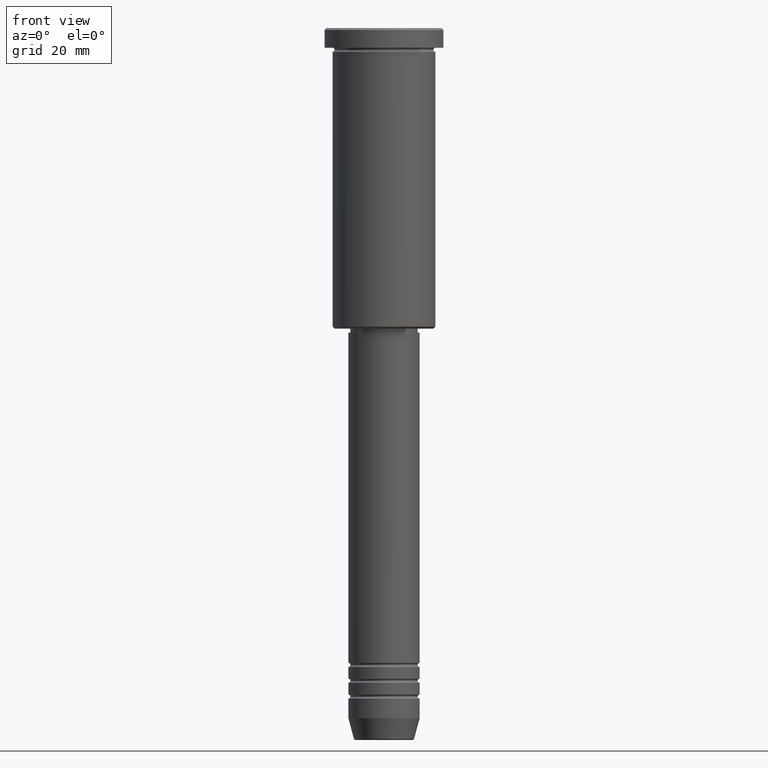
[diagram: clean part render]
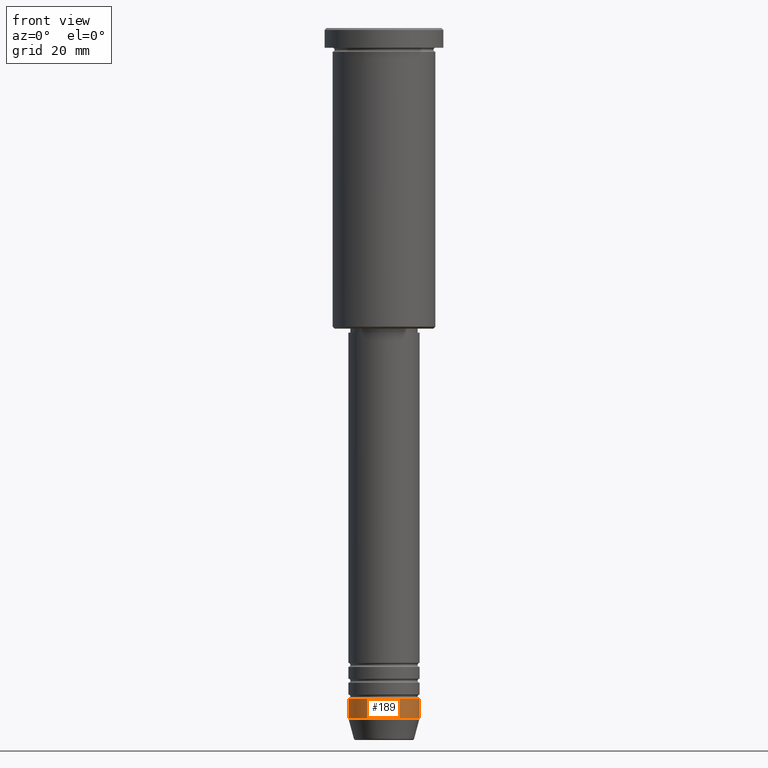
[diagram: same view with one face highlighted and labeled with its STEP entity id]
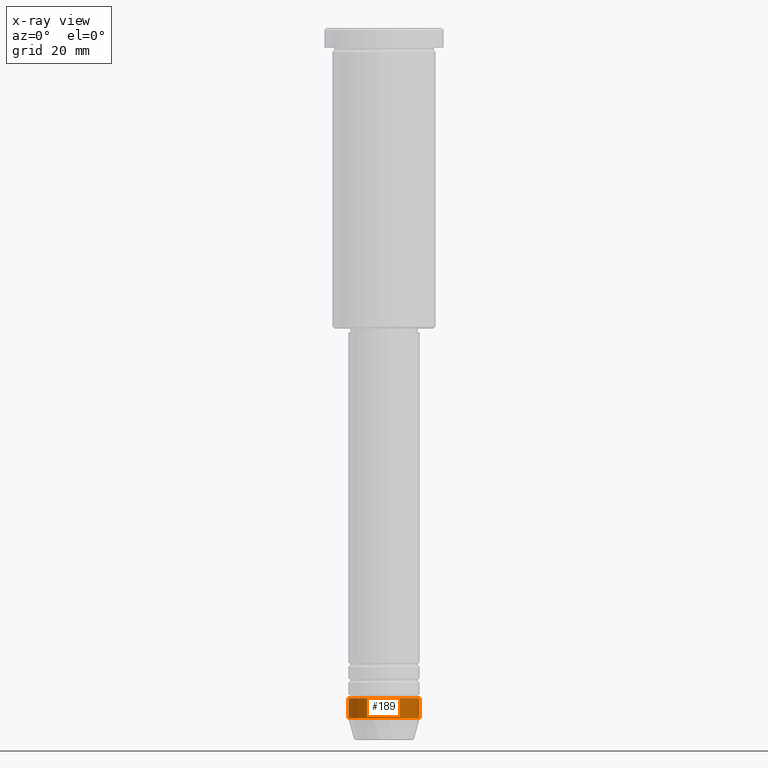
[diagram: x-ray of the same camera — body ghosted, the highlighted face saturated]
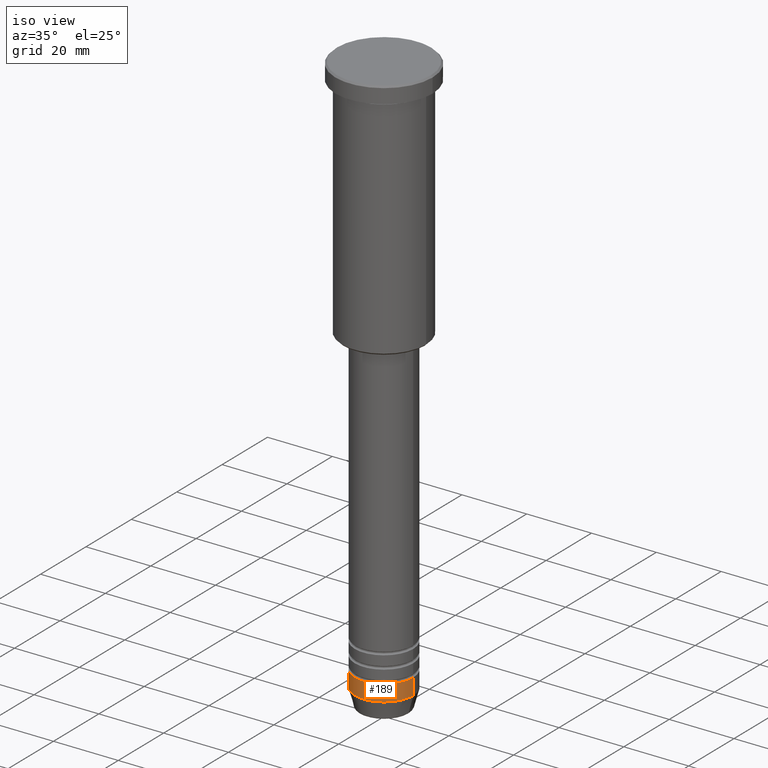
[diagram: same view with one face highlighted and labeled with its STEP entity id]
A machine part, front view. The second image highlights one B-rep face of the part: STEP entity #189.
The next image is the same camera in x-ray: the body ghosted, the highlighted face saturated — about 0% of this face is hidden behind the body in this view.
A second angle (iso view) of the same face is appended — the face is thin or edge-on in the first view.
In plain terms, the highlighted cylindrical surface (edge-blend (fillet) strip) has radius 9 mm, axis along (-0, -0, 1).
Its self-contained STEP definition (entity closure, byte-faithful):
#8 = CARTESIAN_POINT ( 'NONE',  ( 0.000000000000000000, 0.000000000000000000, 0.000000000000000000 ) ) ;
#51 = VECTOR ( 'NONE', #296, 1000.000000000000000 ) ;
#118 = CARTESIAN_POINT ( 'NONE',  ( 0.000000000000000000, 0.000000000000000000, -174.5000000000000284 ) ) ;
#127 = CARTESIAN_POINT ( 'NONE',  ( -9.000000000000000000, 1.102182119232617714E-15, -169.5000000000000000 ) ) ;
#189 = ADVANCED_FACE ( 'NONE', ( #295 ), #841, .T. ) ;
#190 = EDGE_LOOP ( 'NONE', ( #607, #480, #985, #1098 ) ) ;
#231 = CARTESIAN_POINT ( 'NONE',  ( 0.000000000000000000, 0.000000000000000000, -169.5000000000000000 ) ) ;
#252 = DIRECTION ( 'NONE',  ( 1.000000000000000000, 0.000000000000000000, 0.000000000000000000 ) ) ;
#269 = CARTESIAN_POINT ( 'NONE',  ( 9.000000000000001776, 0.000000000000000000, -174.5000000000000284 ) ) ;
#271 = CARTESIAN_POINT ( 'NONE',  ( 9.000000000000000000, 0.000000000000000000, -169.5000000000000000 ) ) ;
#295 = FACE_OUTER_BOUND ( 'NONE', #190, .T. ) ;
#296 = DIRECTION ( 'NONE',  ( -0.000000000000000000, -0.000000000000000000, 1.000000000000000000 ) ) ;
#318 = EDGE_CURVE ( 'NONE', #925, #680, #459, .T. ) ;
#370 = DIRECTION ( 'NONE',  ( -0.000000000000000000, -0.000000000000000000, 1.000000000000000000 ) ) ;
#397 = AXIS2_PLACEMENT_3D ( 'NONE', #118, #404, #252 ) ;
#404 = DIRECTION ( 'NONE',  ( -0.000000000000000000, -0.000000000000000000, 1.000000000000000000 ) ) ;
#459 = CIRCLE ( 'NONE', #397, 9.000000000000001776 ) ;
#460 = EDGE_CURVE ( 'NONE', #680, #561, #750, .T. ) ;
#470 = CARTESIAN_POINT ( 'NONE',  ( -9.000000000000001776, 1.102182119232617911E-15, -174.5000000000000284 ) ) ;
#476 = LINE ( 'NONE', #852, #808 ) ;
#480 = ORIENTED_EDGE ( 'NONE', *, *, #318, .T. ) ;
#492 = VERTEX_POINT ( 'NONE', #127 ) ;
#493 = DIRECTION ( 'NONE',  ( 1.000000000000000000, 0.000000000000000000, 0.000000000000000000 ) ) ;
#561 = VERTEX_POINT ( 'NONE', #271 ) ;
#577 = DIRECTION ( 'NONE',  ( -0.000000000000000000, -0.000000000000000000, 1.000000000000000000 ) ) ;
#591 = DIRECTION ( 'NONE',  ( -0.000000000000000000, -0.000000000000000000, 1.000000000000000000 ) ) ;
#607 = ORIENTED_EDGE ( 'NONE', *, *, #959, .F. ) ;
#680 = VERTEX_POINT ( 'NONE', #269 ) ;
#732 = DIRECTION ( 'NONE',  ( 1.000000000000000000, 0.000000000000000000, 0.000000000000000000 ) ) ;
#750 = LINE ( 'NONE', #1118, #51 ) ;
#808 = VECTOR ( 'NONE', #577, 1000.000000000000000 ) ;
#836 = AXIS2_PLACEMENT_3D ( 'NONE', #8, #370, #732 ) ;
#841 = CYLINDRICAL_SURFACE ( 'NONE', #836, 9.000000000000001776 ) ;
#852 = CARTESIAN_POINT ( 'NONE',  ( -9.000000000000001776, 1.102182119232617911E-15, 0.000000000000000000 ) ) ;
#872 = AXIS2_PLACEMENT_3D ( 'NONE', #231, #591, #493 ) ;
#925 = VERTEX_POINT ( 'NONE', #470 ) ;
#959 = EDGE_CURVE ( 'NONE', #925, #492, #476, .T. ) ;
#985 = ORIENTED_EDGE ( 'NONE', *, *, #460, .T. ) ;
#1098 = ORIENTED_EDGE ( 'NONE', *, *, #1157, .F. ) ;
#1110 = CIRCLE ( 'NONE', #872, 9.000000000000000000 ) ;
#1118 = CARTESIAN_POINT ( 'NONE',  ( 9.000000000000001776, 0.000000000000000000, 0.000000000000000000 ) ) ;
#1157 = EDGE_CURVE ( 'NONE', #492, #561, #1110, .T. ) ;